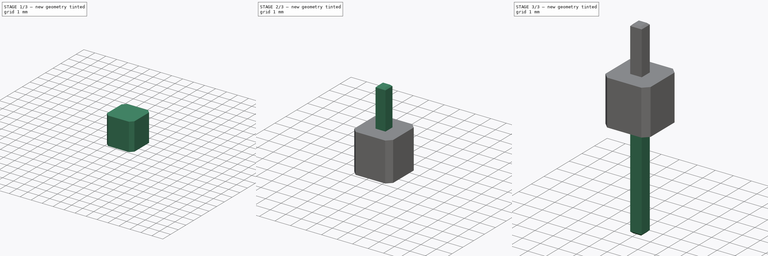
[diagram: build sequence overview — one tinted view per stage of 3, left to right]
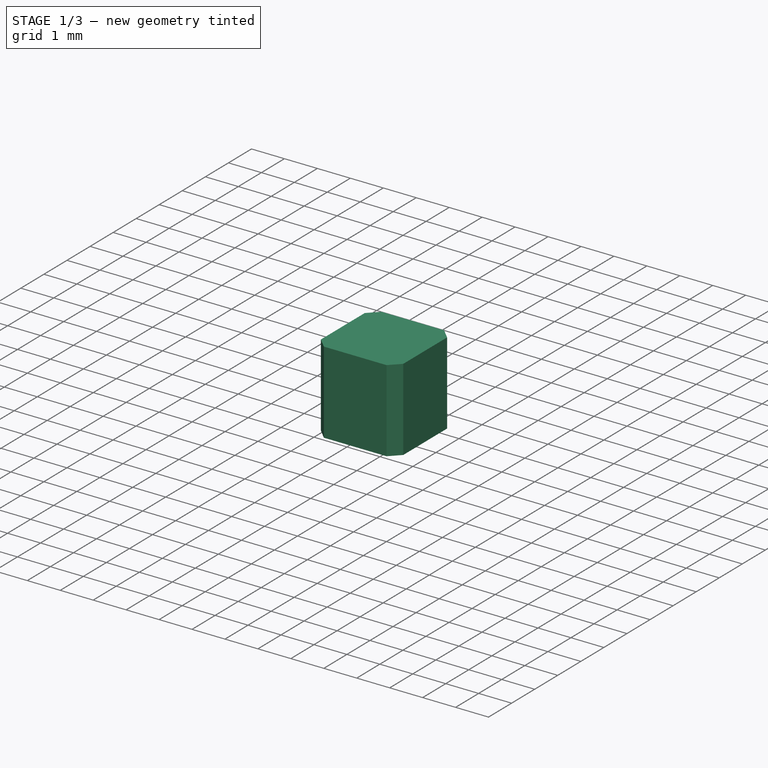
[diagram: stage 1 of 3 — iso view after this stage's code; geometry added in this stage tinted green]
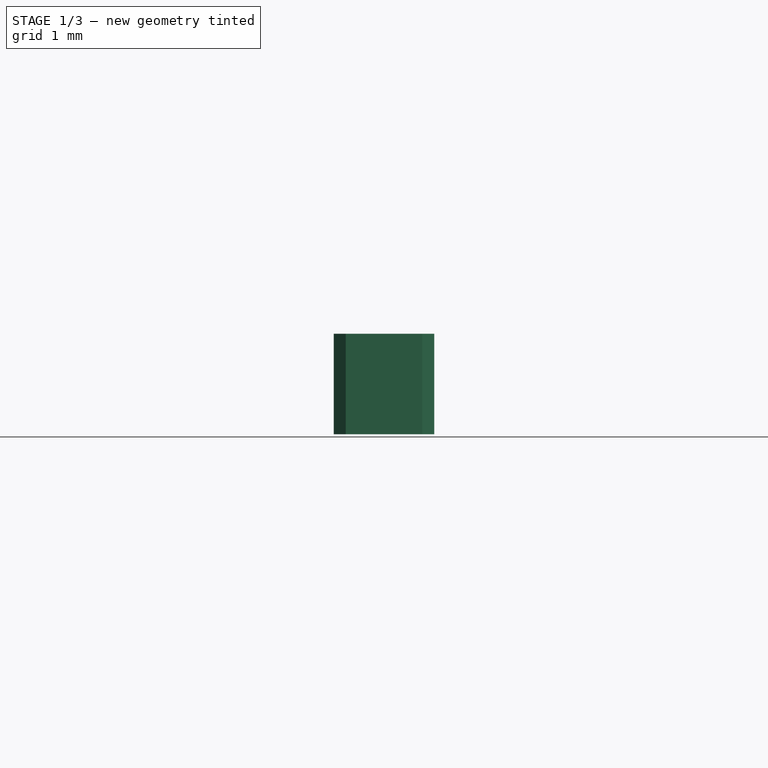
[diagram: stage 1 of 3 — front view after this stage's code; geometry added in this stage tinted green]
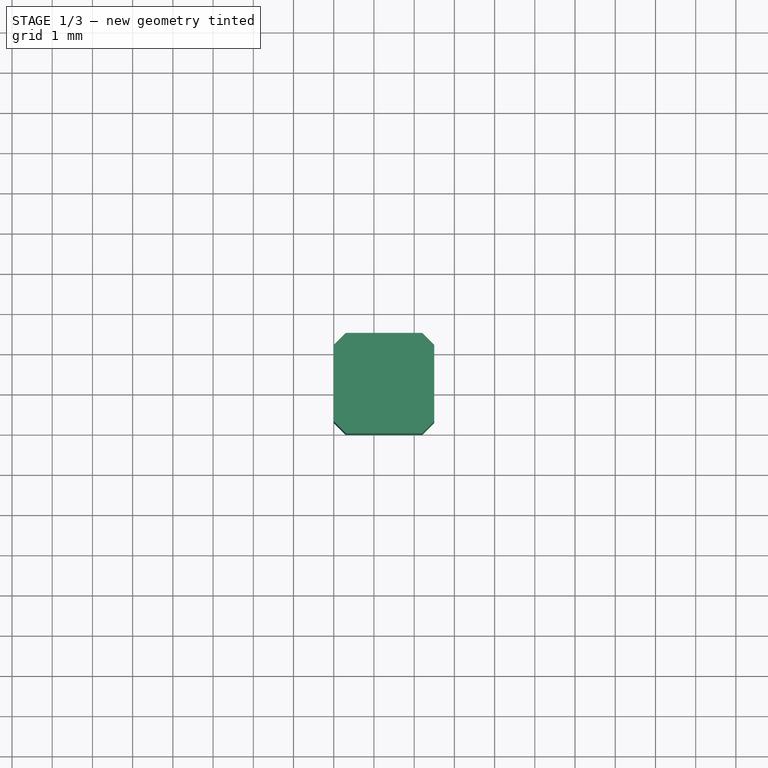
[diagram: stage 1 of 3 — top view after this stage's code; geometry added in this stage tinted green]
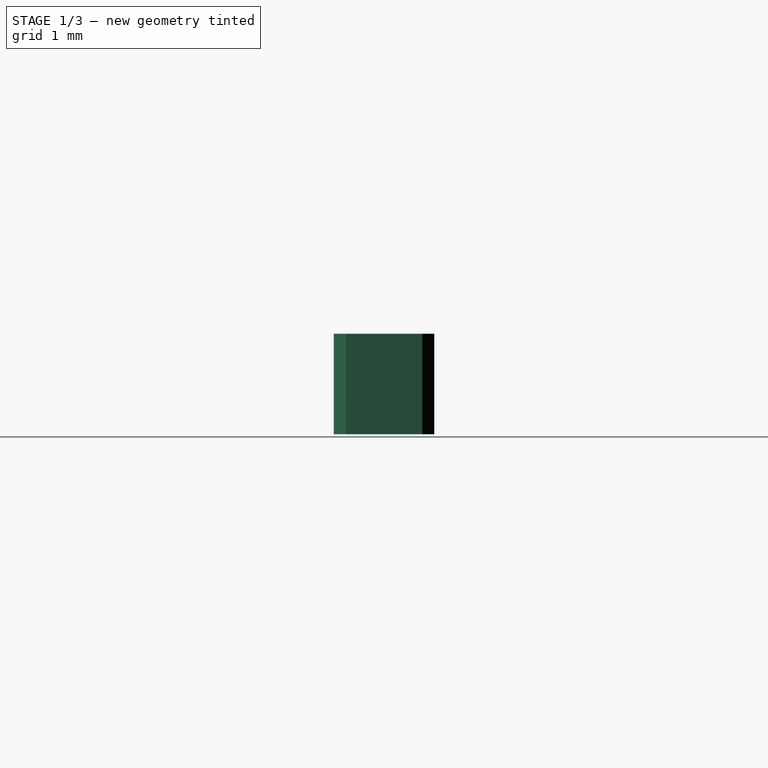
[diagram: stage 1 of 3 — right view after this stage's code; geometry added in this stage tinted green]
FCSTD DOCUMENT  (FreeCAD 0.16R6612 (Git))
Label: header_pin
License: All rights reserved
LicenseURL: http://en.wikipedia.org/wiki/All_rights_reserved
objects: Sketcher::SketchObject×3, PartDesign::Pad×3, PartDesign::Chamfer×3
note: 12 computed .brp shape members not serialized (recipe doc carries the construction recipe); baked Part::Feature solids carry a one-line shape summary decoded from their .brp

FEATURE [Sketcher::SketchObject] Sketch
  sketch-geometry (4):
    g0: LineSegment StartX=0 StartY=2.5 StartZ=0 EndX=2.5 EndY=2.5 EndZ=0
    g1: LineSegment StartX=2.5 StartY=2.5 StartZ=0 EndX=2.5 EndY=0 EndZ=0
    g2: LineSegment StartX=2.5 StartY=0 StartZ=0 EndX=0 EndY=0 EndZ=0
    g3: LineSegment StartX=0 StartY=0 StartZ=0 EndX=0 EndY=2.5 EndZ=0
  constraints (11):
    c: Coincident(g0,g1)
    c: Coincident(g1,g2)
    c: Coincident(g2,g3)
    c: Coincident(g3,g0)
    c: Horizontal(g0)
    c: Horizontal(g2)
    c: Vertical(g1)
    c: Vertical(g3)
    c: Coincident(g2,g-1)
    c: DistanceX(g0,g0) = 2.5
    c: DistanceY(g1,g1) = 2.5
FEATURE [PartDesign::Pad] Pad
  Length = 2.5
  Length2 = 100
  Sketch = -> Sketch
  Type = 0
FEATURE [PartDesign::Chamfer] Chamfer
  Base = -> Pad [Edge8,Edge5,Edge1,Edge2]
  Size = 0.3
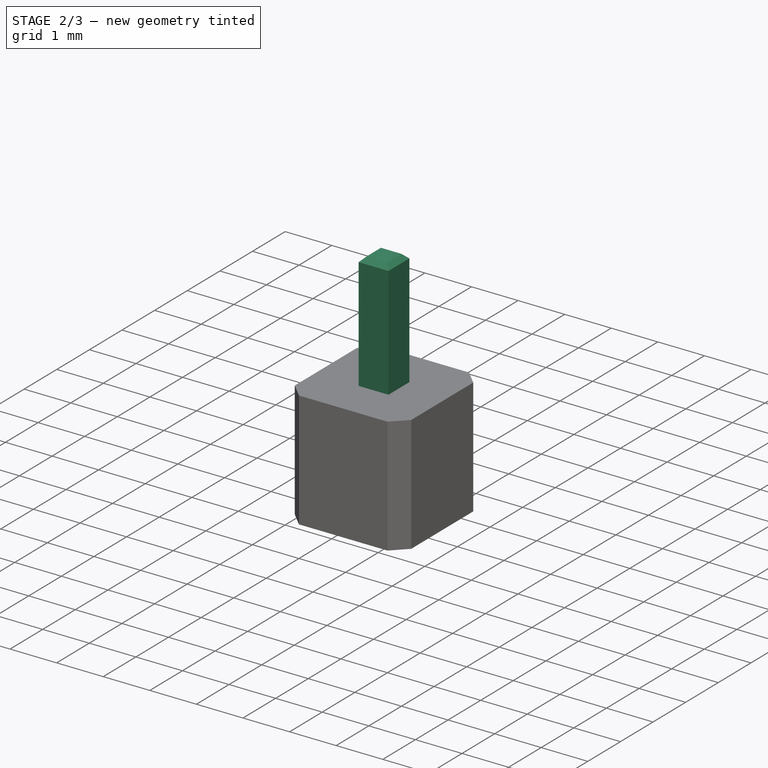
[diagram: stage 2 of 3 — iso view after this stage's code; geometry added in this stage tinted green]
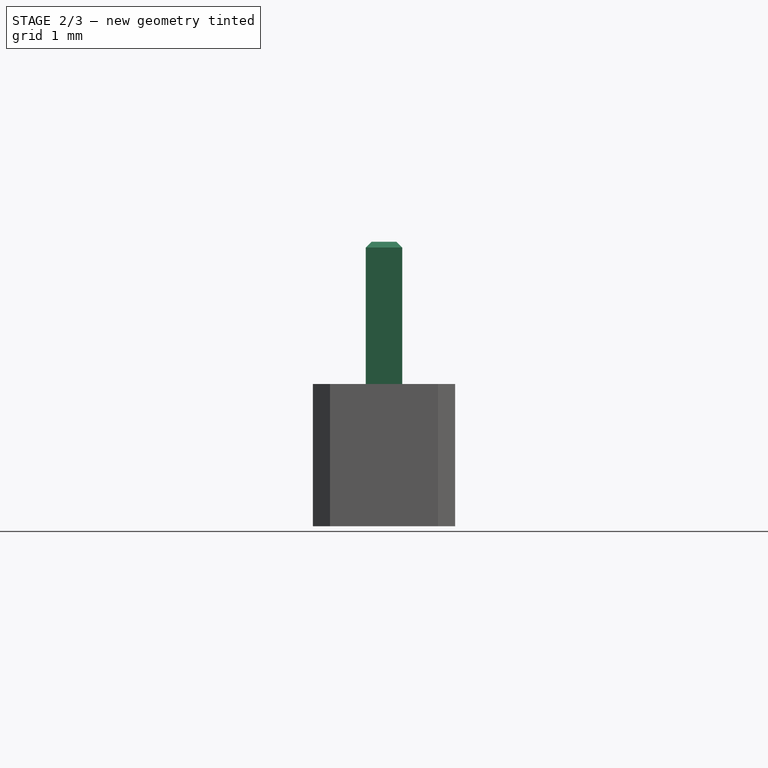
[diagram: stage 2 of 3 — front view after this stage's code; geometry added in this stage tinted green]
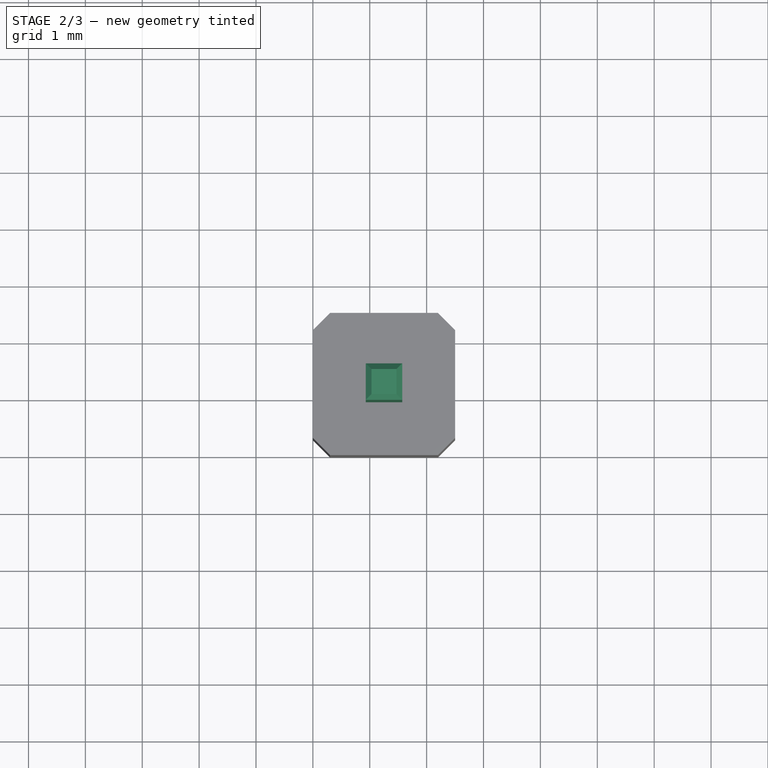
[diagram: stage 2 of 3 — top view after this stage's code; geometry added in this stage tinted green]
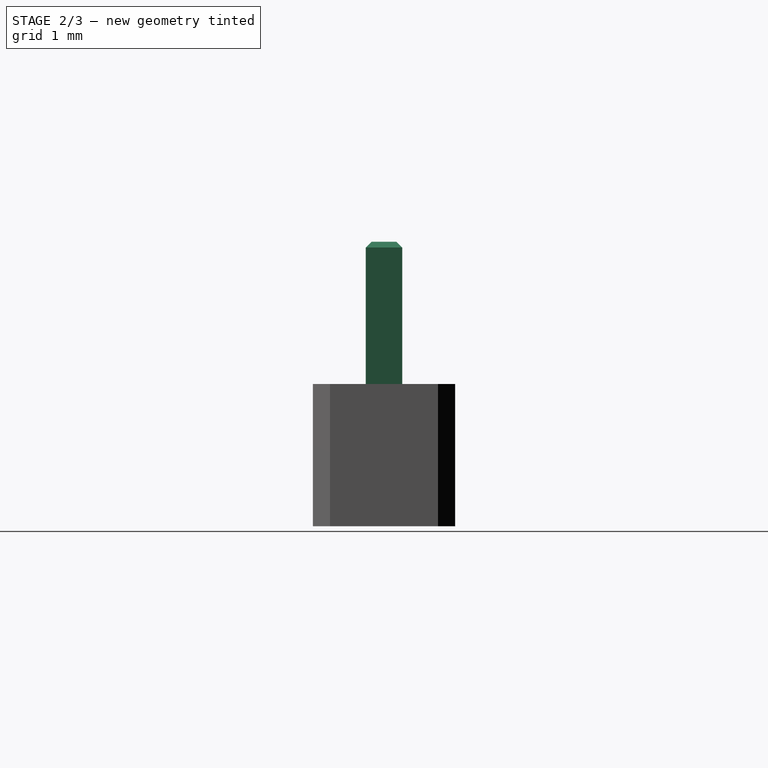
[diagram: stage 2 of 3 — right view after this stage's code; geometry added in this stage tinted green]
FEATURE [Sketcher::SketchObject] Sketch001
  ExternalGeometry = -> [Chamfer]
  Placement = pos=(0,0,2.5) rot=(0,0,1;0rad)
  Support = -> Chamfer [Face5]
  sketch-geometry (8):
    g0: GeomPoint [constr] X=1.25 Y=2.5 Z=0
    g1: LineSegment [constr] StartX=1.25 StartY=2.5 StartZ=0 EndX=1.25 EndY=0.215171 EndZ=0
    g2: GeomPoint [constr] X=2.5 Y=1.25 Z=0
    g3: LineSegment [constr] StartX=2.5 StartY=1.25 StartZ=0 EndX=1.25 EndY=1.25 EndZ=0
    g4: LineSegment StartX=0.93 StartY=1.57 StartZ=0 EndX=1.57 EndY=1.57 EndZ=0
    g5: LineSegment StartX=1.57 StartY=1.57 StartZ=0 EndX=1.57 EndY=0.93 EndZ=0
    g6: LineSegment StartX=1.57 StartY=0.93 StartZ=0 EndX=0.93 EndY=0.93 EndZ=0
    g7: LineSegment StartX=0.93 StartY=0.93 StartZ=0 EndX=0.93 EndY=1.57 EndZ=0
  constraints (18):
    c: Symmetric(g-3,g-3,g0)
    c: Coincident(g1,g0)
    c: Vertical(g1)
    c: Symmetric(g-5,g-5,g2)
    c: Coincident(g3,g2)
    c: PointOnObject(g3,g1)
    c: Horizontal(g3)
    c: Coincident(g4,g5)
    c: Coincident(g5,g6)
    c: Coincident(g6,g7)
    c: Coincident(g7,g4)
    c: Horizontal(g4)
    c: Horizontal(g6)
    c: Vertical(g5)
    c: Vertical(g7)
    c: DistanceY(g7,g7) = 0.64
    c: DistanceX(g4,g4) = 0.64
    c: Symmetric(g6,g4,g3)
FEATURE [PartDesign::Pad] Pad001
  Length = 2.5
  Length2 = 100
  Sketch = -> Sketch001
  Type = 0
FEATURE [PartDesign::Chamfer] Chamfer001
  Base = -> Pad001 [Edge1,Edge2,Edge3,Edge4]
  Size = 0.1
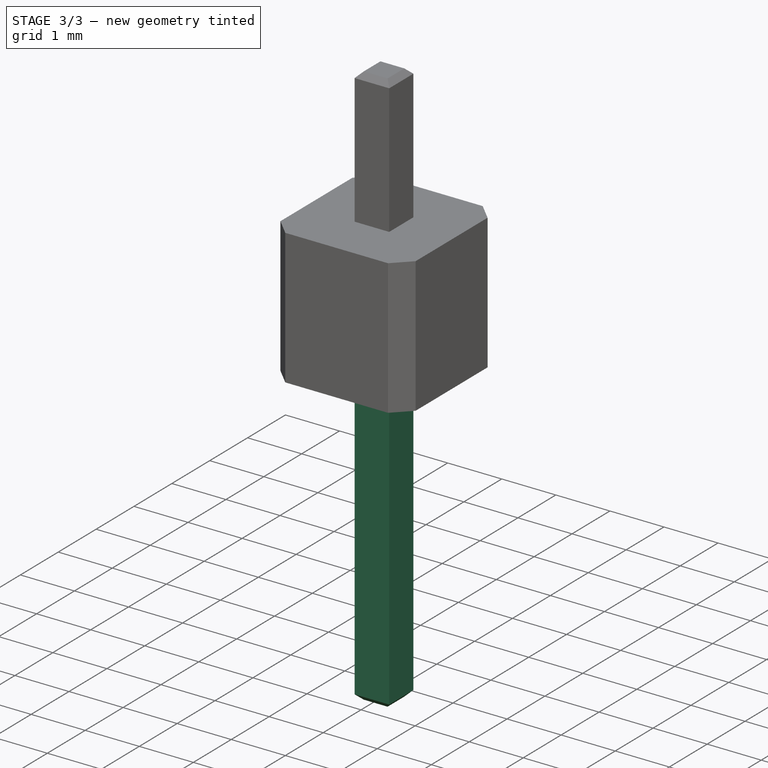
[diagram: stage 3 of 3 — iso view after this stage's code; geometry added in this stage tinted green]
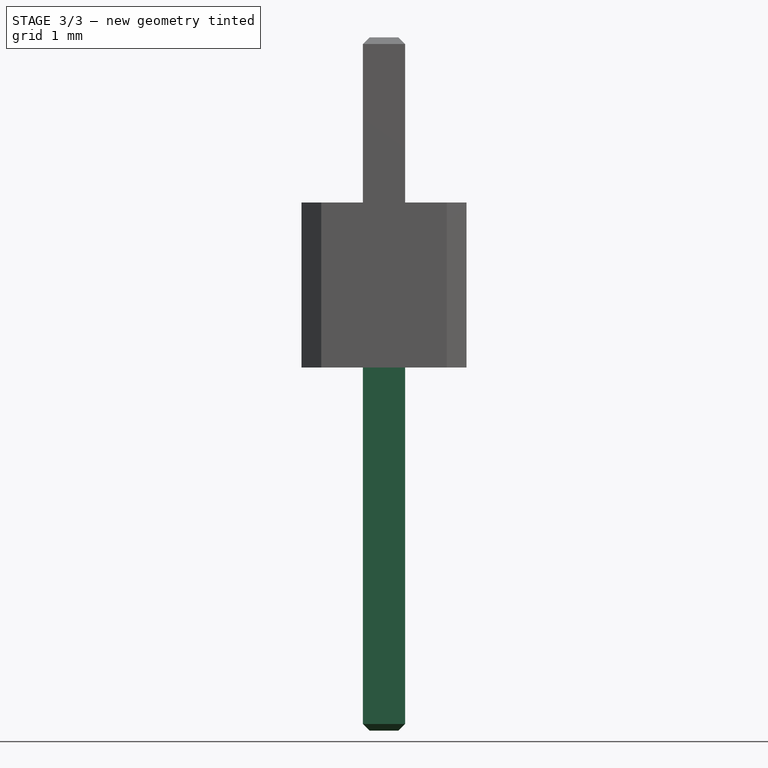
[diagram: stage 3 of 3 — front view after this stage's code; geometry added in this stage tinted green]
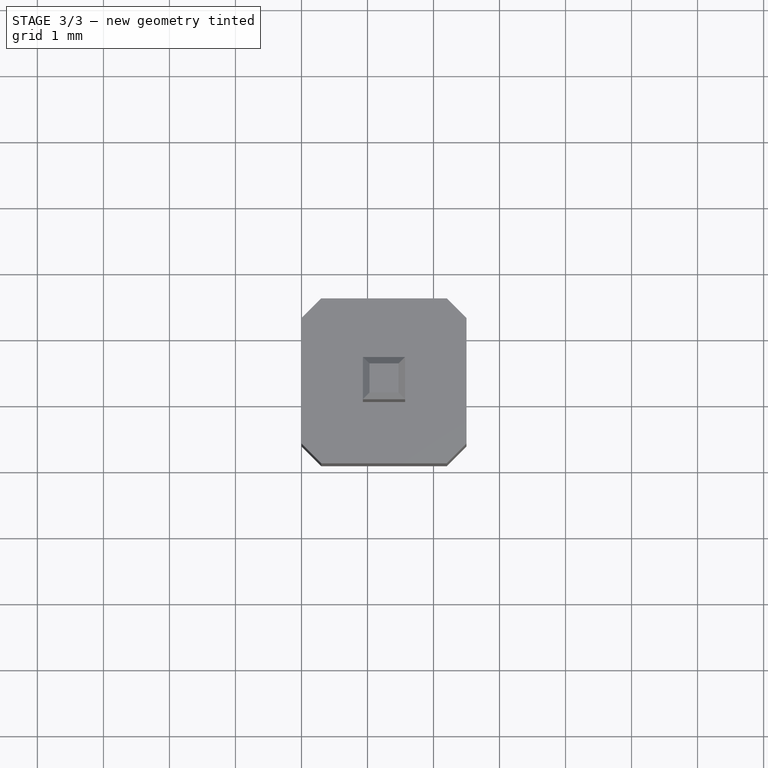
[diagram: stage 3 of 3 — top view after this stage's code; geometry added in this stage tinted green]
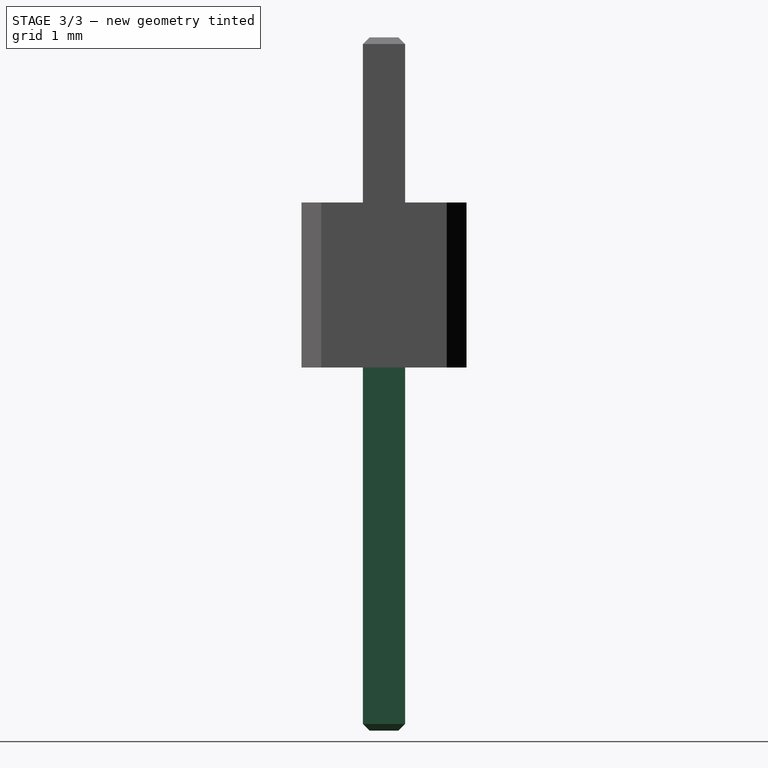
[diagram: stage 3 of 3 — right view after this stage's code; geometry added in this stage tinted green]
FEATURE [Sketcher::SketchObject] Sketch002
  ExternalGeometry = -> [Chamfer001]
  Placement = pos=(0,0,0) rot=(1,0,0;3.14159rad)
  Support = -> Chamfer001 [Face19]
  sketch-geometry (8):
    g0: GeomPoint [constr] X=2.5 Y=-1.25 Z=0
    g1: GeomPoint [constr] X=1.25 Y=-2.5 Z=0
    g2: LineSegment [constr] StartX=1.25 StartY=-2.5 StartZ=0 EndX=1.25 EndY=-0.861225 EndZ=0
    g3: LineSegment [constr] StartX=2.5 StartY=-1.25 StartZ=0 EndX=1.25 EndY=-1.25 EndZ=0
    g4: LineSegment StartX=0.93 StartY=-0.93 StartZ=0 EndX=1.57 EndY=-0.93 EndZ=0
    g5: LineSegment StartX=1.57 StartY=-0.93 StartZ=0 EndX=1.57 EndY=-1.57 EndZ=0
    g6: LineSegment StartX=1.57 StartY=-1.57 StartZ=0 EndX=0.93 EndY=-1.57 EndZ=0
    g7: LineSegment StartX=0.93 StartY=-1.57 StartZ=0 EndX=0.93 EndY=-0.93 EndZ=0
  constraints (18):
    c: Symmetric(g-4,g-4,g0)
    c: Symmetric(g-3,g-3,g1)
    c: Coincident(g2,g1)
    c: Vertical(g2)
    c: Coincident(g3,g0)
    c: PointOnObject(g3,g2)
    c: Horizontal(g3)
    c: Coincident(g4,g5)
    c: Coincident(g5,g6)
    c: Coincident(g6,g7)
    c: Coincident(g7,g4)
    c: Horizontal(g4)
    c: Horizontal(g6)
    c: Vertical(g5)
    c: Vertical(g7)
    c: DistanceX(g4,g4) = 0.64
    c: DistanceY(g5,g5) = 0.64
    c: Symmetric(g6,g4,g3)
FEATURE [PartDesign::Pad] Pad002
  Length = 5.5
  Length2 = 100
  Sketch = -> Sketch002
  Type = 0
FEATURE [PartDesign::Chamfer] Chamfer002
  Base = -> Pad002 [Edge1,Edge2,Edge3,Edge4]
  Size = 0.1
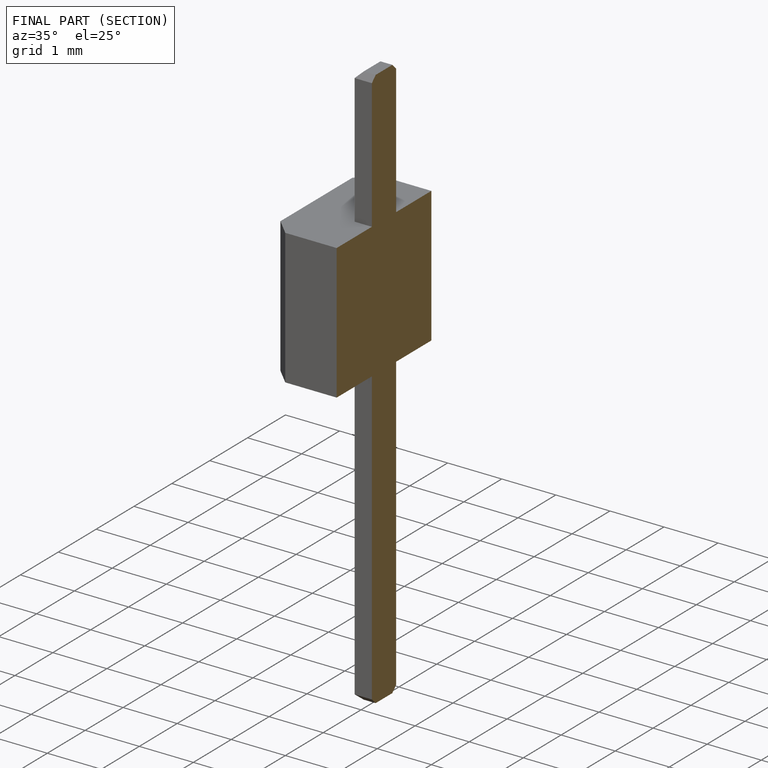
[diagram: finished part — half-section view (interior)]
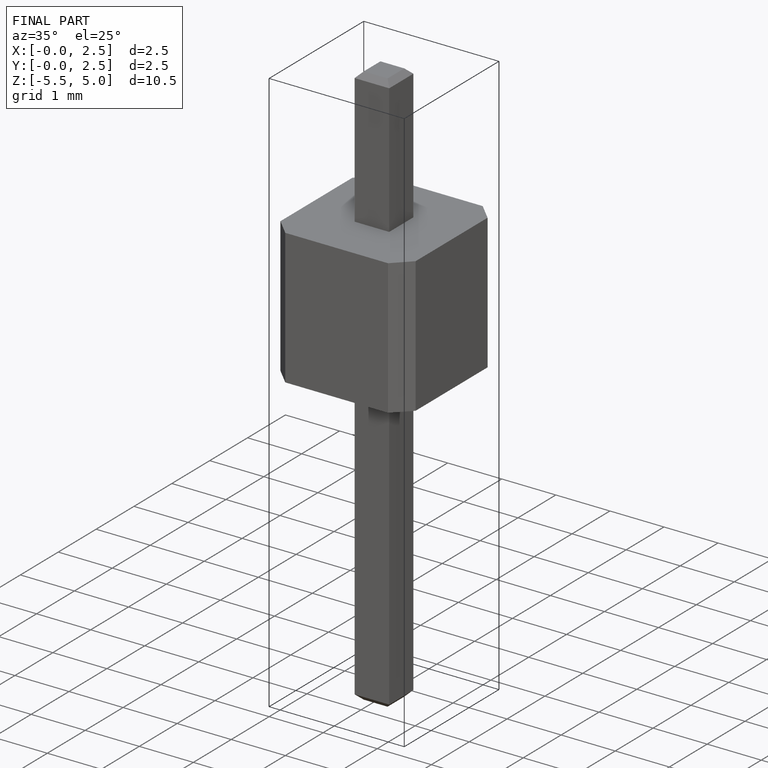
[diagram: finished part — iso view with bounding-box wireframe]
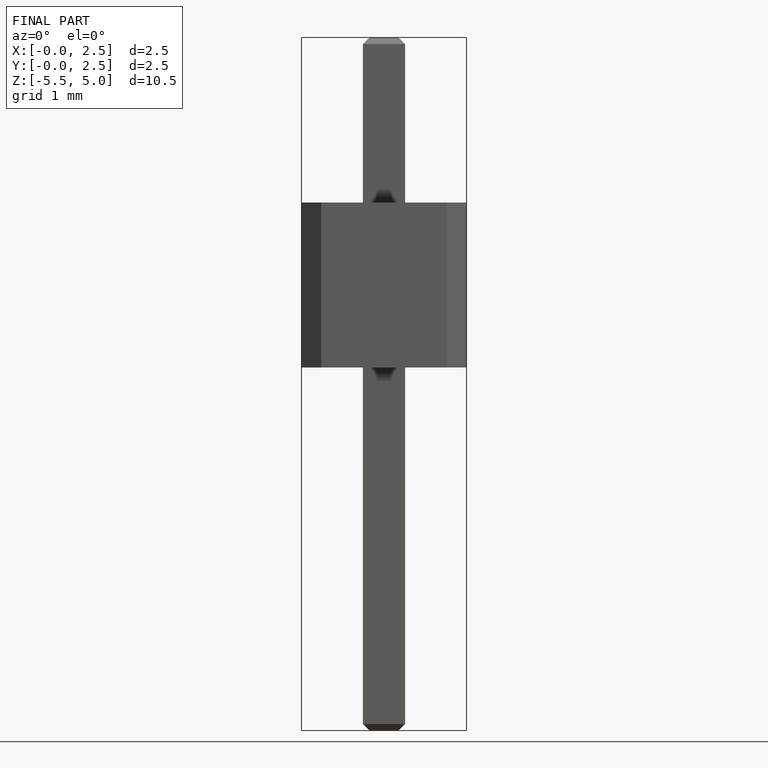
[diagram: finished part — front view with bounding-box wireframe]
